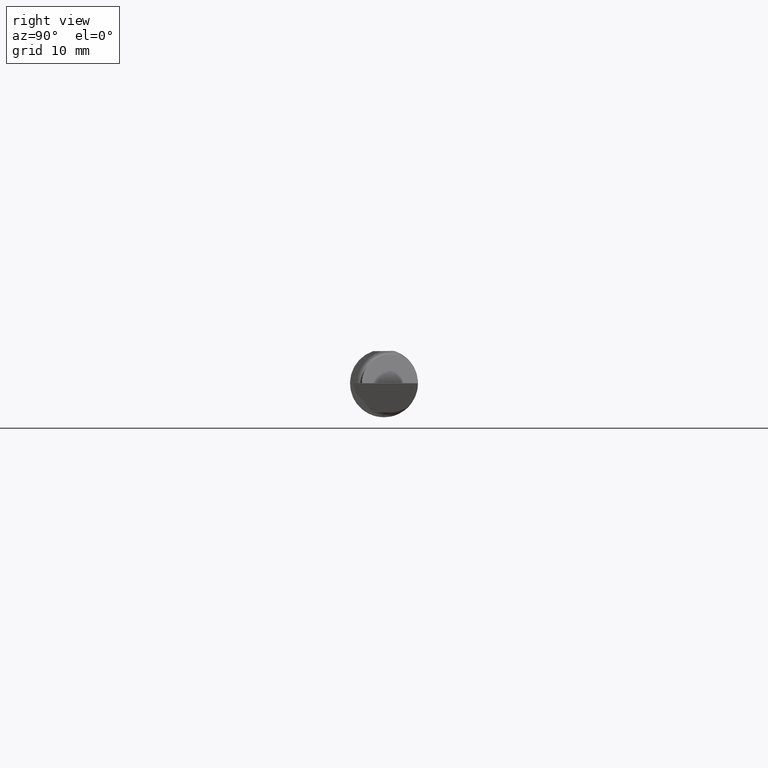
[diagram: clean part render]
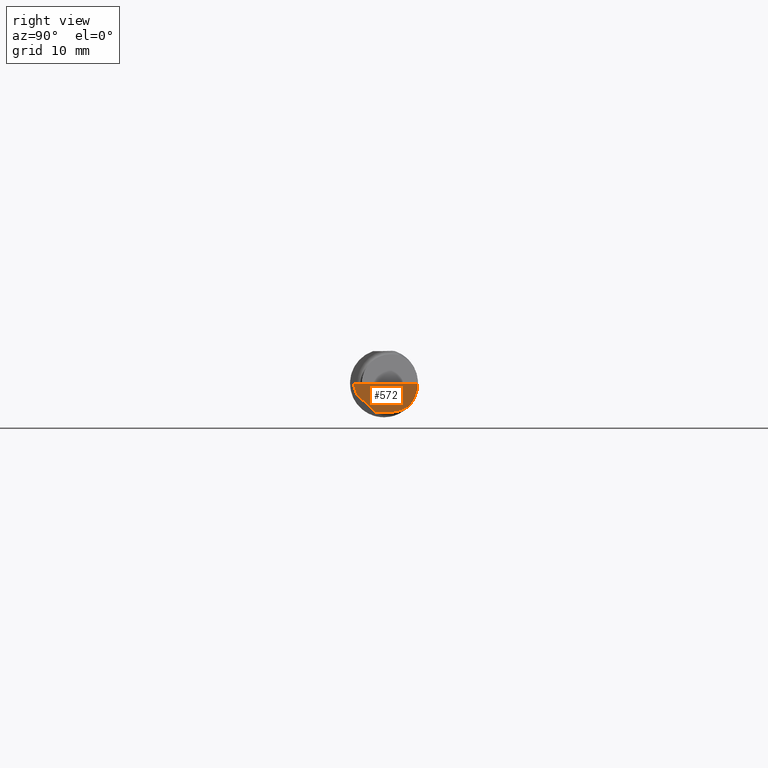
[diagram: same view with one face highlighted and labeled with its STEP entity id]
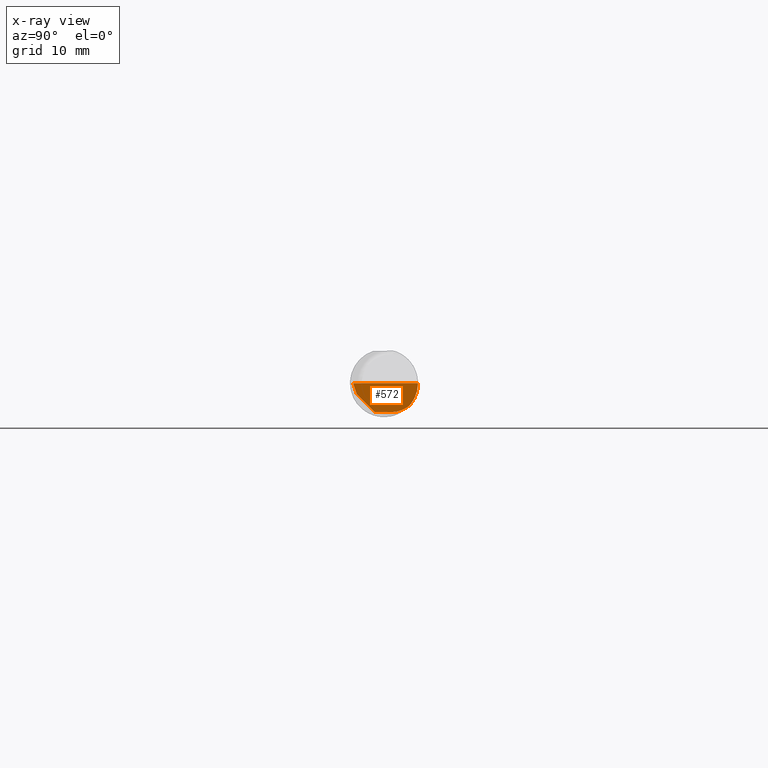
[diagram: x-ray of the same camera — body ghosted, the highlighted face saturated]
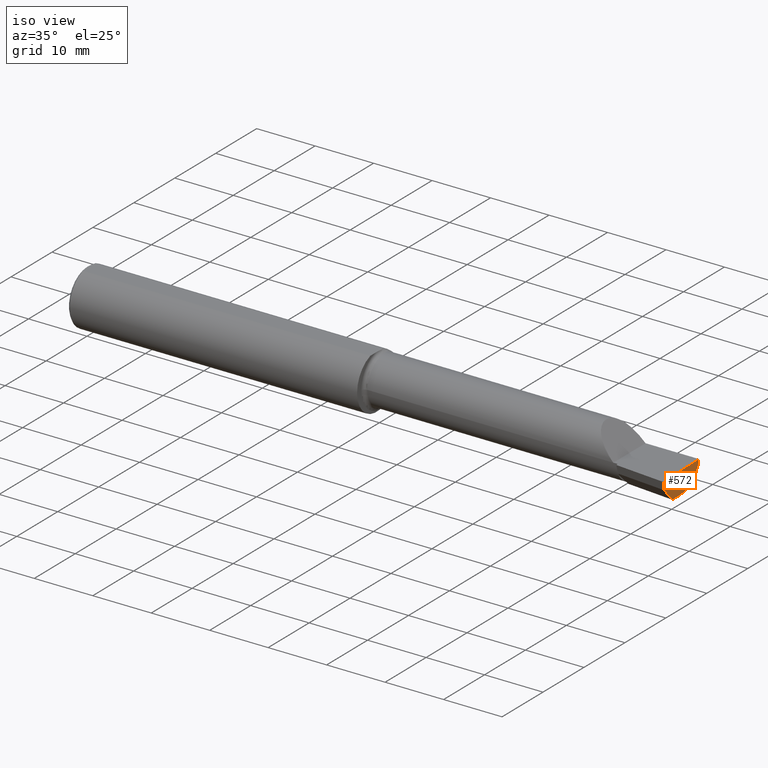
[diagram: same view with one face highlighted and labeled with its STEP entity id]
A machine part, right view. The second image highlights one B-rep face of the part: STEP entity #572.
The next image is the same camera in x-ray: the body ghosted, the highlighted face saturated — about 0% of this face is hidden behind the body in this view.
A second angle (iso view) of the same face is appended — the face is thin or edge-on in the first view.
In plain terms, the highlighted planar face has unit normal (0.9927, 0.0266, -0.1175).
Its self-contained STEP definition (entity closure, byte-faithful):
#15 = CARTESIAN_POINT ( 'NONE',  ( 4.002124209719674752, -0.2499430938217229448, -1.369336491024132282E-16 ) ) ;
#20 = DIRECTION ( 'NONE',  ( 0.02677973311239319198, -0.9996413586354002678, -4.242669001540338239E-18 ) ) ;
#28 = DIRECTION ( 'NONE',  ( -0.1175789623991730232, 0.000000000000000000, -0.9930635365378861490 ) ) ;
#30 = VERTEX_POINT ( 'NONE', #645 ) ;
#37 = VERTEX_POINT ( 'NONE', #45 ) ;
#38 = LINE ( 'NONE', #694, #214 ) ;
#45 = CARTESIAN_POINT ( 'NONE',  ( 4.000000000000000888, -0.1706500000000002737, 0.000000000000000000 ) ) ;
#63 = ORIENTED_EDGE ( 'NONE', *, *, #96, .T. ) ;
#96 = EDGE_CURVE ( 'NONE', #614, #30, #333, .T. ) ;
#103 = CARTESIAN_POINT ( 'NONE',  ( 3.977555437944266803, 0.1454917112299461412, -0.1180346748349058866 ) ) ;
#107 = CARTESIAN_POINT ( 'NONE',  ( 3.977837650838079941, -0.05073698874247323243, -0.1600499999999999701 ) ) ;
#160 = ORIENTED_EDGE ( 'NONE', *, *, #393, .T. ) ;
#174 = CARTESIAN_POINT ( 'NONE',  ( 3.975476519002682618, 0.03739999999999996799, -0.1600499999999999701 ) ) ;
#188 = EDGE_LOOP ( 'NONE', ( #63, #671, #684, #696, #160, #629 ) ) ;
#198 = CARTESIAN_POINT ( 'NONE',  ( 3.977555437944266803, 0.1454917112299461412, -0.1180346748349058866 ) ) ;
#204 =( BOUNDED_CURVE ( )  B_SPLINE_CURVE ( 3, ( #662, #341, #234, #677 ),
 .UNSPECIFIED., .F., .F. ) 
 B_SPLINE_CURVE_WITH_KNOTS ( ( 4, 4 ),
 ( 6.060671081087566137, 6.802126725515762473 ),
 .UNSPECIFIED. ) 
 CURVE ( )  GEOMETRIC_REPRESENTATION_ITEM ( )  RATIONAL_B_SPLINE_CURVE ( ( 1.000000000000000000, 0.9547092712975357998, 0.9547092712975357998, 1.000000000000000000 ) ) 
 REPRESENTATION_ITEM ( '' )  );
#214 = VECTOR ( 'NONE', #239, 39.37007874015748854 ) ;
#225 = CARTESIAN_POINT ( 'NONE',  ( 3.992367153641839028, -0.1509096159518786284, -0.06000000000000012962 ) ) ;
#234 = CARTESIAN_POINT ( 'NONE',  ( 3.975117649406746612, 0.1156304438478833047, -0.1453804992321584277 ) ) ;
#235 = EDGE_CURVE ( 'NONE', #466, #241, #619, .T. ) ;
#239 = DIRECTION ( 'NONE',  ( -0.1199690778467080998, 0.3102690083707252966, -0.9430485474275739355 ) ) ;
#241 = VERTEX_POINT ( 'NONE', #107 ) ;
#279 = LINE ( 'NONE', #335, #641 ) ;
#309 = CARTESIAN_POINT ( 'NONE',  ( 4.021663741957635096, -0.1700827149522022852, 0.1830987749981471402 ) ) ;
#333 =( BOUNDED_CURVE ( )  B_SPLINE_CURVE ( 3, ( #103, #666, #616, #336 ),
 .UNSPECIFIED., .F., .T. ) 
 B_SPLINE_CURVE_WITH_KNOTS ( ( 4, 4 ),
 ( 0.6667001948156751068, 1.348282100702876463 ),
 .UNSPECIFIED. ) 
 CURVE ( )  GEOMETRIC_REPRESENTATION_ITEM ( )  RATIONAL_B_SPLINE_CURVE ( ( 1.000000000000000000, 0.9616603987079545002, 0.9616603987079545002, 1.000000000000000000 ) ) 
 REPRESENTATION_ITEM ( '' )  );
#335 = CARTESIAN_POINT ( 'NONE',  ( 3.975494106117762882, 0.03674350325526463956, -0.1600499999999999701 ) ) ;
#336 = CARTESIAN_POINT ( 'NONE',  ( 3.990409415965618933, 0.1873499999999998777, -1.350776936262635077E-16 ) ) ;
#341 = CARTESIAN_POINT ( 'NONE',  ( 3.974391802280965447, 0.07789060880782619489, -0.1600500000000000811 ) ) ;
#381 = AXIS2_PLACEMENT_3D ( 'NONE', #309, #588, #28 ) ;
#393 = EDGE_CURVE ( 'NONE', #241, #484, #279, .T. ) ;
#413 = PLANE ( 'NONE',  #381 ) ;
#445 = DIRECTION ( 'NONE',  ( -0.1020886612874987581, 0.7038430390621321919, -0.7029814233678639557 ) ) ;
#448 = EDGE_CURVE ( 'NONE', #30, #37, #507, .T. ) ;
#455 = DIRECTION ( 'NONE',  ( -0.02677973311239321627, 0.9996413586354002678, -1.778823206104526600E-16 ) ) ;
#466 = VERTEX_POINT ( 'NONE', #225 ) ;
#467 = FACE_OUTER_BOUND ( 'NONE', #188, .T. ) ;
#475 = EDGE_CURVE ( 'NONE', #484, #614, #204, .T. ) ;
#484 = VERTEX_POINT ( 'NONE', #174 ) ;
#500 = CARTESIAN_POINT ( 'NONE',  ( 3.986403283069230863, -0.1097921330163685871, -0.1010671486043597800 ) ) ;
#507 = LINE ( 'NONE', #15, #539 ) ;
#539 = VECTOR ( 'NONE', #20, 39.37007874015748143 ) ;
#572 = ADVANCED_FACE ( 'NONE', ( #467 ), #413, .T. ) ;
#588 = DIRECTION ( 'NONE',  ( 0.9927123040216839778, 0.02659410830638294504, -0.1175373763844857061 ) ) ;
#591 = VECTOR ( 'NONE', #445, 39.37007874015748854 ) ;
#606 = EDGE_CURVE ( 'NONE', #37, #466, #38, .T. ) ;
#614 = VERTEX_POINT ( 'NONE', #198 ) ;
#616 = CARTESIAN_POINT ( 'NONE',  ( 3.985269663752128100, 0.1873499999999999888, -0.04340998088356462503 ) ) ;
#619 = LINE ( 'NONE', #500, #591 ) ;
#629 = ORIENTED_EDGE ( 'NONE', *, *, #475, .T. ) ;
#641 = VECTOR ( 'NONE', #455, 39.37007874015748143 ) ;
#645 = CARTESIAN_POINT ( 'NONE',  ( 3.990409415965618933, 0.1873499999999998777, -1.350776936262635077E-16 ) ) ;
#662 = CARTESIAN_POINT ( 'NONE',  ( 3.975476519002682618, 0.03739999999999996799, -0.1600499999999999701 ) ) ;
#666 = CARTESIAN_POINT ( 'NONE',  ( 3.980814183058311695, 0.1728409665178085308, -0.08432347972837234140 ) ) ;
#671 = ORIENTED_EDGE ( 'NONE', *, *, #448, .T. ) ;
#677 = CARTESIAN_POINT ( 'NONE',  ( 3.977555437944266803, 0.1454917112299461412, -0.1180346748349058866 ) ) ;
#684 = ORIENTED_EDGE ( 'NONE', *, *, #606, .T. ) ;
#694 = CARTESIAN_POINT ( 'NONE',  ( 3.986184608397200790, -0.1349200608374181709, -0.1085995259529370371 ) ) ;
#696 = ORIENTED_EDGE ( 'NONE', *, *, #235, .T. ) ;